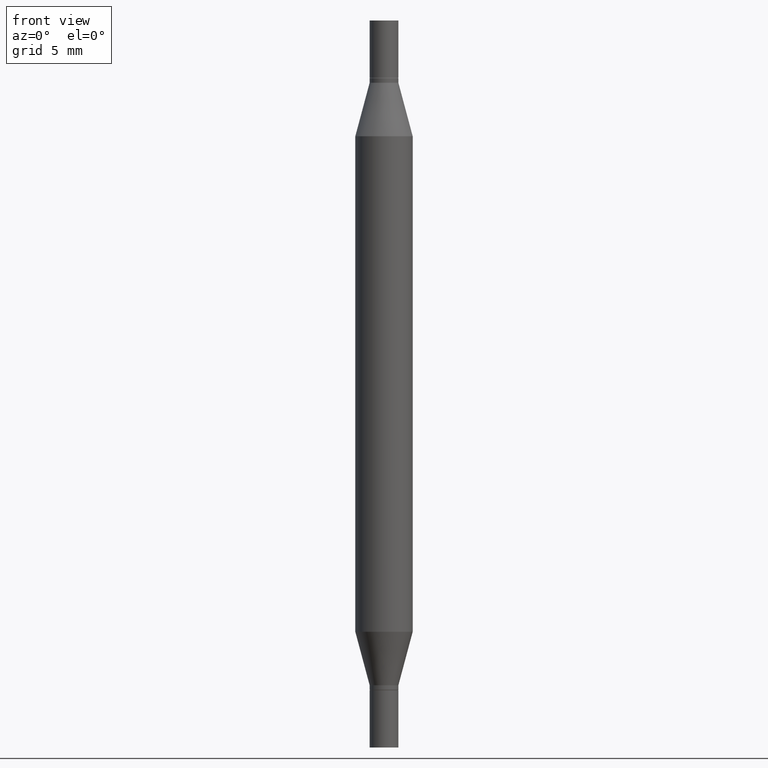
[diagram: clean part render]
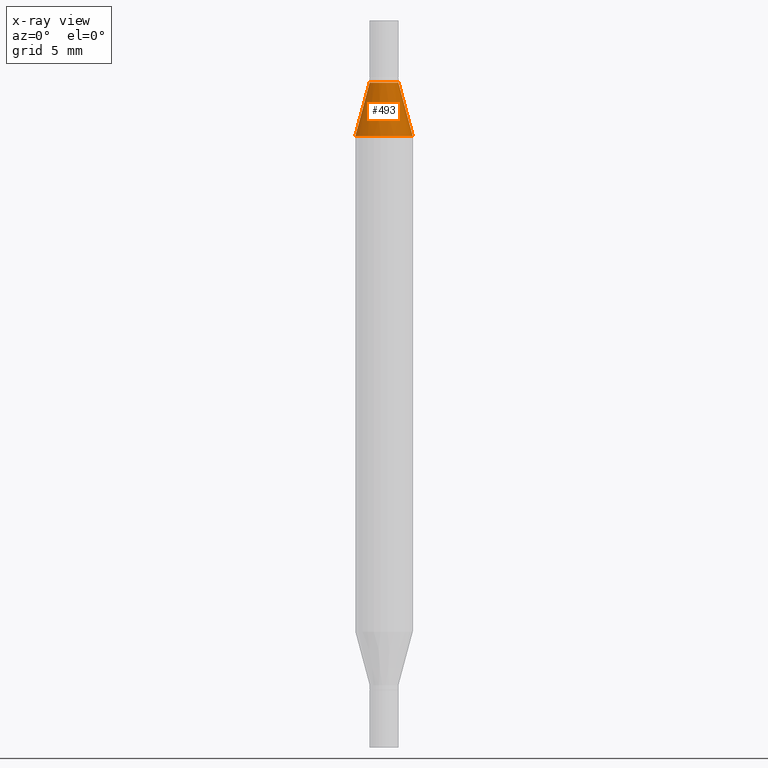
[diagram: x-ray — body ghosted, one internal face saturated and labeled with its STEP entity id]
A machine part, front view, then the same camera in x-ray: the body is ghosted and one INTERNAL B-rep face — a face not visible from any outside direction — is saturated and labeled: STEP entity #493.
In plain terms, the highlighted conical surface has half-angle 15 deg.
Its self-contained STEP definition (entity closure, byte-faithful):
#12 = AXIS2_PLACEMENT_3D ( 'NONE', #619, #472, #19 ) ;
#19 = DIRECTION ( 'NONE',  ( 1.000000000000000000, -6.982962677686265133E-15, 0.000000000000000000 ) ) ;
#58 = VECTOR ( 'NONE', #296, 39.37007874015747433 ) ;
#88 = EDGE_CURVE ( 'NONE', #459, #390, #514, .T. ) ;
#135 = VERTEX_POINT ( 'NONE', #628 ) ;
#139 = DIRECTION ( 'NONE',  ( 2.445468806185136597E-29, 3.491805094961124077E-15, 1.000000000000000000 ) ) ;
#151 = LINE ( 'NONE', #596, #58 ) ;
#157 = FACE_OUTER_BOUND ( 'NONE', #764, .T. ) ;
#208 = DIRECTION ( 'NONE',  ( 2.445468806185136597E-29, 3.491805094961124077E-15, 1.000000000000000000 ) ) ;
#264 = ORIENTED_EDGE ( 'NONE', *, *, #807, .F. ) ;
#282 = CIRCLE ( 'NONE', #646, 0.05904999999999999832 ) ;
#284 = CIRCLE ( 'NONE', #796, 0.02954999999999991661 ) ;
#296 = DIRECTION ( 'NONE',  ( 0.2588190451025213501, -5.180148453816008779E-15, -0.9659258262890682012 ) ) ;
#301 = ORIENTED_EDGE ( 'NONE', *, *, #373, .T. ) ;
#354 = CARTESIAN_POINT ( 'NONE',  ( -0.05904999999999999832, -4.260284833459836245E-16, -0.2380954988232820146 ) ) ;
#365 = DIRECTION ( 'NONE',  ( -0.2588190451025213501, -1.597197180879714326E-15, -0.9659258262890682012 ) ) ;
#373 = EDGE_CURVE ( 'NONE', #390, #135, #282, .T. ) ;
#382 = ORIENTED_EDGE ( 'NONE', *, *, #88, .T. ) ;
#390 = VERTEX_POINT ( 'NONE', #354 ) ;
#418 = DIRECTION ( 'NONE',  ( 1.000000000000000000, -6.982962677686265133E-15, 0.000000000000000000 ) ) ;
#419 = VECTOR ( 'NONE', #365, 39.37007874015747433 ) ;
#458 = CARTESIAN_POINT ( 'NONE',  ( 3.076410765668156654E-29, -8.311408901143919011E-16, -0.2380954988232820146 ) ) ;
#459 = VERTEX_POINT ( 'NONE', #952 ) ;
#472 = DIRECTION ( 'NONE',  ( -2.445468806185136597E-29, -3.491805094961124077E-15, -1.000000000000000000 ) ) ;
#493 = ADVANCED_FACE ( 'NONE', ( #157 ), #875, .T. ) ;
#502 = ORIENTED_EDGE ( 'NONE', *, *, #805, .F. ) ;
#514 = LINE ( 'NONE', #669, #419 ) ;
#596 = CARTESIAN_POINT ( 'NONE',  ( 0.02954999999999991661, -6.530554135165988789E-16, -0.1280000000000001137 ) ) ;
#619 = CARTESIAN_POINT ( 'NONE',  ( 3.345645873741884627E-29, -4.467088663909703532E-16, -0.1280000000000001137 ) ) ;
#628 = CARTESIAN_POINT ( 'NONE',  ( 0.05904999999999999832, -1.243484836231766624E-15, -0.2380954988232820146 ) ) ;
#646 = AXIS2_PLACEMENT_3D ( 'NONE', #458, #208, #418 ) ;
#669 = CARTESIAN_POINT ( 'NONE',  ( -0.02954999999999991661, -2.439811505568221169E-16, -0.1280000000000001137 ) ) ;
#738 = DIRECTION ( 'NONE',  ( 1.000000000000000000, -6.982962677686265133E-15, 0.000000000000000000 ) ) ;
#764 = EDGE_LOOP ( 'NONE', ( #264, #382, #301, #502 ) ) ;
#773 = CARTESIAN_POINT ( 'NONE',  ( 0.02954999999999991661, -6.530554135165988789E-16, -0.1280000000000001137 ) ) ;
#796 = AXIS2_PLACEMENT_3D ( 'NONE', #825, #139, #738 ) ;
#805 = EDGE_CURVE ( 'NONE', #970, #135, #151, .T. ) ;
#807 = EDGE_CURVE ( 'NONE', #459, #970, #284, .T. ) ;
#825 = CARTESIAN_POINT ( 'NONE',  ( 3.345645873741884627E-29, -4.467088663909703532E-16, -0.1280000000000001137 ) ) ;
#875 = CONICAL_SURFACE ( 'NONE', #12, 0.02954999999999991661, 0.2617993877991500740 ) ;
#952 = CARTESIAN_POINT ( 'NONE',  ( -0.02954999999999991661, -2.275696666105042854E-16, -0.1280000000000001137 ) ) ;
#970 = VERTEX_POINT ( 'NONE', #773 ) ;